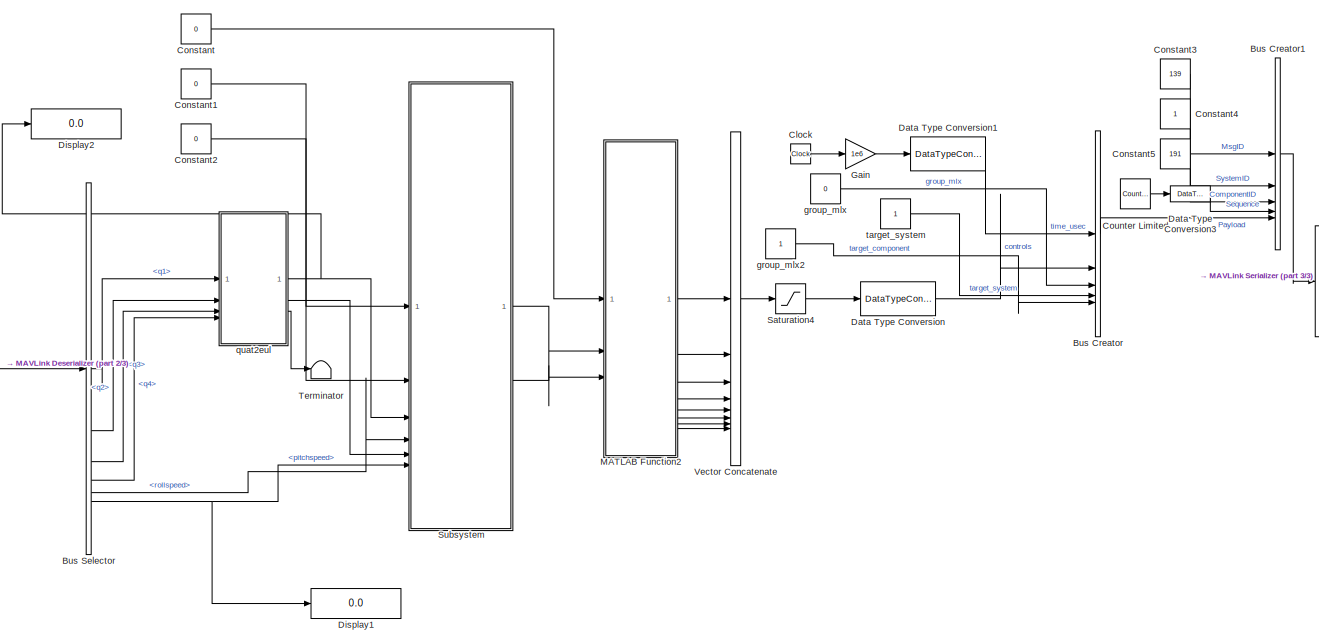
[diagram: root canvas - part 1/3, center side, full height]
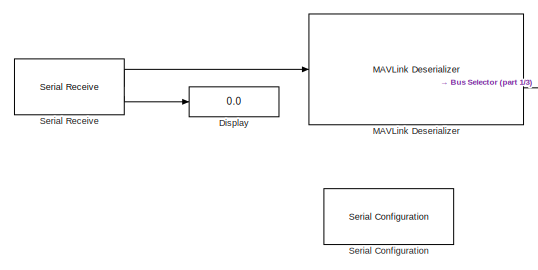
[diagram: root canvas - part 2/3, middle left region]
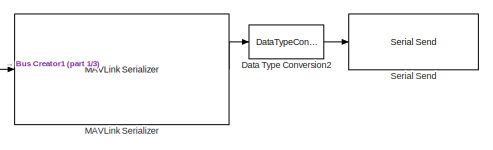
[diagram: root canvas - part 3/3, middle right region]
MODEL slx_46066a2f3b35
KIND model
CONFIG AbsTol = auto
CONFIG EnableMultiTasking = off
CONFIG FixedStep = 0.001
CONFIG MaxStep = auto
CONFIG MinStep = auto
CONFIG RelTol = 1e-3
CONFIG SampleTimeConstraint = Unconstrained
CONFIG SolverName = FixedStepDiscrete
CONFIG StartTime = 0.0
CONFIG StopTime = inf
BLOCK [BusCreator] Bus Creator
  DisplayOption = bar
  InheritFromInputs = on
  Inputs = 5
  NonVirtualBus = on
  OutDataTypeStr = Bus: SL_Bus_MAVLink_SET_ACTUATOR_CONTROL_TARGET_Payload
BLOCK [BusCreator] Bus Creator1
  DisplayOption = bar
  InheritFromInputs = on
  Inputs = 5
  NonVirtualBus = on
  OutDataTypeStr = Bus: SL_Bus_MAVLink_SET_ACTUATOR_CONTROL_TARGET_Packet
BLOCK [BusSelector] Bus Selector
  OutputSignals = Payload.q1,Payload.q2,Payload.q3,Payload.q4,Payload.rollspeed,Payload.pitchspeed
BLOCK [Clock] Clock
BLOCK [Constant] Constant
  Value = 0
BLOCK [Constant] Constant1
  Value = 0
BLOCK [Constant] Constant2
  Value = 0
BLOCK [Constant] Constant3
  OutDataTypeStr = uint32
  Value = 139
BLOCK [Constant] Constant4
  OutDataTypeStr = uint8
BLOCK [Constant] Constant5
  OutDataTypeStr = uint8
  Value = 191
BLOCK [Reference] Counter Limited  REF=simulink/Sources/Counter
Limited
  SourceBlock = simulink/Sources/Counter\nLimited
  SourceType = Counter Limited
BLOCK [DataTypeConversion] Data Type Conversion
  OutDataTypeStr = single
  RndMeth = Floor
  SaturateOnIntegerOverflow = off
BLOCK [DataTypeConversion] Data Type Conversion1
  OutDataTypeStr = uint64
  RndMeth = Floor
  SaturateOnIntegerOverflow = off
BLOCK [DataTypeConversion] Data Type Conversion2
  OutDataTypeStr = uint8
  RndMeth = Floor
  SaturateOnIntegerOverflow = off
BLOCK [DataTypeConversion] Data Type Conversion3
  OutDataTypeStr = uint8
  RndMeth = Floor
  SaturateOnIntegerOverflow = off
BLOCK [Display] Display
  Decimation = 1
BLOCK [Display] Display1
  Decimation = 1
BLOCK [Display] Display2
  Decimation = 1
BLOCK [Gain] Gain
  Gain = 1e6
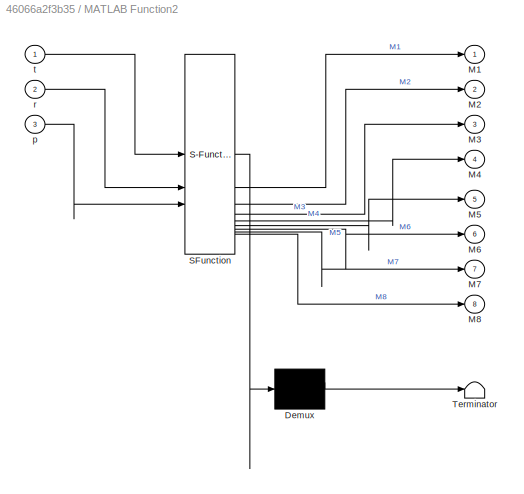
BLOCK [SubSystem] MATLAB Function2
  ErrorFcn = Stateflow.Translate.translate
  PermitHierarchicalResolution = ExplicitOnly
  SFBlockType = MATLAB Function
  TreatAsAtomicUnit = on
BLOCK [Demux] MATLAB Function2/ Demux 
  Outputs = 1
BLOCK [S-Function] MATLAB Function2/ SFunction 
  EnableBusSupport = off
  FunctionName = sf_sfun
  PortCounts = [3 9]
  SFcnIsStateOwnerBlock = off
  SFunctionDeploymentMode = off
  Tag = Stateflow S-Function 3
BLOCK [Terminator] MATLAB Function2/ Terminator 
BLOCK [Outport] MATLAB Function2/M1
BLOCK [Outport] MATLAB Function2/M2
  Port = 2
BLOCK [Outport] MATLAB Function2/M3
  Port = 3
BLOCK [Outport] MATLAB Function2/M4
  Port = 4
BLOCK [Outport] MATLAB Function2/M5
  Port = 5
BLOCK [Outport] MATLAB Function2/M6
  Port = 6
BLOCK [Outport] MATLAB Function2/M7
  Port = 7
BLOCK [Outport] MATLAB Function2/M8
  Port = 8
BLOCK [Inport] MATLAB Function2/p
  Port = 3
BLOCK [Inport] MATLAB Function2/r
  Port = 2
BLOCK [Inport] MATLAB Function2/t
BLOCK [Reference] MAVLink Deserializer  REF=uavmavlinklib/MAVLink Deserializer
  SourceBlock = uavmavlinklib/MAVLink Deserializer
  SourceType = MAVLink Deserializer
BLOCK [Reference] MAVLink Serializer  REF=uavmavlinklib/MAVLink Serializer
  SourceBlock = uavmavlinklib/MAVLink Serializer
  SourceType = MAVLink Serializer
BLOCK [Saturate] Saturation4
  LowerLimit = 0
  UpperLimit = 1
BLOCK [Reference] Serial Configuration  REF=instrumentseriallib/Serial Configuration
  LibrarySourceBlock = instrumentlib/Serial Configuration
  Priority = -200000
  SourceBlock = instrumentseriallib/Serial Configuration
  SourceType = system.SerialConfiguration
BLOCK [Reference] Serial Receive  REF=instrumentseriallib/Serial Receive
  LibrarySourceBlock = embeddedtargetslib/Host Communication/Serial Receive
  Priority = 1
  SourceBlock = instrumentseriallib/Serial Receive
  SourceType = system.SerialReceive
BLOCK [Reference] Serial Send  REF=instrumentseriallib/Serial Send
  LibrarySourceBlock = instrumentlib/Serial Send
  Priority = 1
  SourceBlock = instrumentseriallib/Serial Send
  SourceType = system.SerialSend
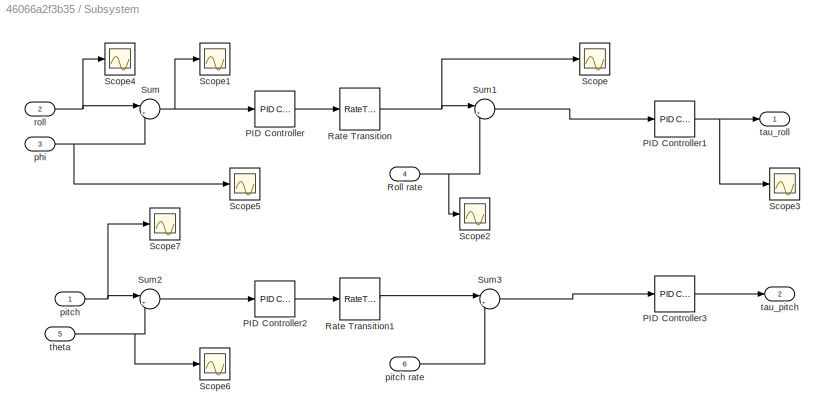
BLOCK [SubSystem] Subsystem
BLOCK [Reference] Subsystem/PID Controller  REF=slpidlib/PID Controller
  LibrarySourceBlock = simulink/Continuous/PID Controller
  SourceBlock = slpidlib/PID Controller
  SourceType = PID 1dof
BLOCK [Reference] Subsystem/PID Controller1  REF=slpidlib/PID Controller
  LibrarySourceBlock = simulink/Continuous/PID Controller
  SourceBlock = slpidlib/PID Controller
  SourceType = PID 1dof
BLOCK [Reference] Subsystem/PID Controller2  REF=slpidlib/PID Controller
  LibrarySourceBlock = simulink/Continuous/PID Controller
  SourceBlock = slpidlib/PID Controller
  SourceType = PID 1dof
BLOCK [Reference] Subsystem/PID Controller3  REF=slpidlib/PID Controller
  LibrarySourceBlock = simulink/Continuous/PID Controller
  SourceBlock = slpidlib/PID Controller
  SourceType = PID 1dof
BLOCK [RateTransition] Subsystem/Rate Transition
  OutPortSampleTime = 0.001
BLOCK [RateTransition] Subsystem/Rate Transition1
  OutPortSampleTime = 0.001
BLOCK [Inport] Subsystem/Roll rate
  Port = 4
BLOCK [Scope] Subsystem/Scope
  ActiveDisplayYMaximum = 0.062193159013986588
  ActiveDisplayYMinimum = -0.066639374941587448
  DataLogging = on
  DataLoggingSaveFormat = Structure With Time
  DataLoggingVariableName = des_rollrate
  Floating = off
  GraphicalSettings = {"Style":{"BackgroundColor":[0.12941176470588237,0.12941176470588237,0.12941176470588237],"AxesColor":[0.07058823529411765,0.07058823529411765,0.07058823529411765],"LabelsColor":[0.8509803921568627,0.8509803921568627,0.8509803921568627],"PreserveColors":false,"Visible":[true],"LineStyle":["-"],"LineWidth":[1.5],"BarWidth":[0.9],"LineColor":["auto"],"LineFaceAlpha":[1],"LineEdgeAlpha":[1],"Marker":...<+1895ch>
  MultipleDisplayCache = [{"MaxYLimMag":0.066639374941587448,"MaxYLimReal":0.062193159013986588,"MinYLimMag":0,"MinYLimReal":-0.066639374941587448,"PlotAsMagnitudePhase":false,"ShowGrid":true,"ShowLegend":false,"Title":"%<SignalLabel>","YLabel":""}]
  NumInputPorts = 1
  ScopeFrameLocation = window
  WasSavedAsWebScope = on
  WindowPosition = [261.000000,235.000000,560.000000,420.000000,]
BLOCK [Scope] Subsystem/Scope1
  ActiveDisplayYMaximum = 0.65147780627012253
  ActiveDisplayYMinimum = -0.65983980149030685
  DataLogging = on
  DataLoggingSaveFormat = Structure With Time
  DataLoggingVariableName = error1
  Floating = off
  GraphicalSettings = {"Style":{"BackgroundColor":[0.12941176470588237,0.12941176470588237,0.12941176470588237],"AxesColor":[0.07058823529411765,0.07058823529411765,0.07058823529411765],"LabelsColor":[0.8509803921568627,0.8509803921568627,0.8509803921568627],"PreserveColors":false,"Visible":[true],"LineStyle":["-"],"LineWidth":[1.5],"BarWidth":[0.9],"LineColor":["auto"],"LineFaceAlpha":[1],"LineEdgeAlpha":[1],"Marker":...<+1991ch>
  MultipleDisplayCache = [{"MaxYLimMag":0.65983980149030685,"MaxYLimReal":0.65147780627012253,"MinYLimMag":0,"MinYLimReal":-0.65983980149030685,"PlotAsMagnitudePhase":false,"ShowGrid":true,"ShowLegend":false,"Title":"%<SignalLabel>","YLabel":""}]
  NumInputPorts = 1
  ScopeFrameLocation = window
  WasSavedAsWebScope = on
  WindowPosition = [661.000000,230.000000,560.000000,420.000000,]
BLOCK [Scope] Subsystem/Scope2
  ActiveDisplayYMaximum = 1.3986920863389969
  ActiveDisplayYMinimum = -1.3887496739625931
  DataLogging = on
  DataLoggingSaveFormat = Structure With Time
  DataLoggingVariableName = rollrate
  Floating = off
  GraphicalSettings = {"AxesScalingProperties":{"AlignXAxis":"Center","AlignYAxis":"Center","AutoScaleXAxisLimits":false,"AxesScaling":"Manual","AxesScalingNumUpdates":10,"ExpandOnly":true,"ScaleAxesLimitsAtStop":false,"XAxisDataRange":100,"YAxisDataRange":80},"DisplayProperties":{"ColorOrder":["auto","auto","auto","auto","auto","auto","auto","auto","auto","auto","auto","auto","auto","auto","auto","auto","auto","auto",...<+2022ch>
  MultipleDisplayCache = [{"MaxYLimMag":1.3986920863389969,"MaxYLimReal":1.3986920863389969,"MinYLimMag":0,"MinYLimReal":-1.3887496739625931,"PlotAsMagnitudePhase":false,"ShowGrid":true,"ShowLegend":false,"Title":"%<SignalLabel>","YLabel":""}]
  NumInputPorts = 1
  ScopeFrameLocation = window
  WasSavedAsWebScope = on
  WindowPosition = [1149.000000,287.000000,560.000000,433.000000,]
BLOCK [Scope] Subsystem/Scope3
  ActiveDisplayYMaximum = 0.13515391017383055
  ActiveDisplayYMinimum = -0.13114039766727936
  DataLogging = on
  DataLoggingSaveFormat = Structure With Time
  DataLoggingVariableName = tau_roll
  Floating = off
  GraphicalSettings = {"AxesScalingProperties":{"AlignXAxis":"Center","AlignYAxis":"Center","AutoScaleXAxisLimits":false,"AxesScaling":"Manual","AxesScalingNumUpdates":10,"ExpandOnly":true,"ScaleAxesLimitsAtStop":false,"XAxisDataRange":100,"YAxisDataRange":80},"DisplayProperties":{"ColorOrder":["auto","auto","auto","auto","auto","auto","auto","auto","auto","auto","auto","auto","auto","auto","auto","auto","auto","auto",...<+1938ch>
  MultipleDisplayCache = [{"MaxYLimMag":1.25,"MaxYLimReal":0.13515391017383055,"MinYLimMag":0,"MinYLimReal":-0.13114039766727936,"PlotAsMagnitudePhase":false,"ShowGrid":true,"ShowLegend":false,"Title":"%<SignalLabel>","YLabel":""}]
  NumInputPorts = 1
  ScopeFrameLocation = window
  WasSavedAsWebScope = on
  WindowPosition = [488.000000,222.000000,560.000000,420.000000,]
BLOCK [Scope] Subsystem/Scope4
  ActiveDisplayYMaximum = 0.10656582657247782
  ActiveDisplayYMinimum = -0.10880342219024897
  DataLogging = on
  DataLoggingSaveFormat = Structure With Time
  DataLoggingVariableName = des_roll
  Floating = off
  GraphicalSettings = {"AxesScalingProperties":{"AlignXAxis":"Center","AlignYAxis":"Center","AutoScaleXAxisLimits":false,"AxesScaling":"Manual","AxesScalingNumUpdates":10,"ExpandOnly":true,"ScaleAxesLimitsAtStop":false,"XAxisDataRange":100,"YAxisDataRange":80},"DisplayProperties":{"ColorOrder":["auto","auto","auto","auto","auto","auto","auto","auto","auto","auto","auto","auto","auto","auto","auto","auto","auto","auto",...<+2006ch>
  MultipleDisplayCache = [{"MaxYLimMag":0.10880342219024897,"MaxYLimReal":0.10656582657247782,"MinYLimMag":0,"MinYLimReal":-0.10880342219024897,"PlotAsMagnitudePhase":false,"ShowGrid":true,"ShowLegend":false,"Title":"%<SignalLabel>","YLabel":""}]
  NumInputPorts = 1
  ScopeFrameLocation = window
  WasSavedAsWebScope = on
  WindowPosition = [586.000000,191.000000,560.000000,420.000000,]
BLOCK [Scope] Subsystem/Scope5
  ActiveDisplayYMaximum = 0.58284265660383228
  ActiveDisplayYMinimum = -0.57664480562044174
  DataLogging = on
  DataLoggingSaveFormat = Structure With Time
  DataLoggingVariableName = quatroll
  Floating = off
  GraphicalSettings = {"AxesScalingProperties":{"AlignXAxis":"Center","AlignYAxis":"Center","AutoScaleXAxisLimits":false,"AxesScaling":"Manual","AxesScalingNumUpdates":10,"ExpandOnly":true,"ScaleAxesLimitsAtStop":false,"XAxisDataRange":100,"YAxisDataRange":80},"DisplayProperties":{"ColorOrder":["auto","auto","auto","auto","auto","auto","auto","auto","auto","auto","auto","auto","auto","auto","auto","auto","auto","auto",...<+2004ch>
  MultipleDisplayCache = [{"MaxYLimMag":0.58284265660383228,"MaxYLimReal":0.58284265660383228,"MinYLimMag":0,"MinYLimReal":-0.57664480562044174,"PlotAsMagnitudePhase":false,"ShowGrid":true,"ShowLegend":false,"Title":"%<SignalLabel>","YLabel":""}]
  NumInputPorts = 1
  ScopeFrameLocation = window
  WasSavedAsWebScope = on
  WindowPosition = [93.000000,235.000000,560.000000,402.000000,]
BLOCK [Scope] Subsystem/Scope6
  ActiveDisplayYMaximum = 0.78107425943017006
  ActiveDisplayYMinimum = -0.31608188524842262
  ContainerLayout = {"WindowBounds":[307,28,1296,807]}
  DataLogging = on
  DataLoggingSaveFormat = Structure With Time
  DataLoggingVariableName = quatpitch
  Floating = off
  GraphicalSettings = {"Style":{"BackgroundColor":[0.12941176470588237,0.12941176470588237,0.12941176470588237],"AxesColor":[0.07058823529411765,0.07058823529411765,0.07058823529411765],"LabelsColor":[0.8509803921568627,0.8509803921568627,0.8509803921568627],"PreserveColors":false,"Visible":[true],"LineStyle":["-"],"LineWidth":[1.5],"BarWidth":[0.9],"LineColor":["auto"],"LineFaceAlpha":[1],"LineEdgeAlpha":[1],"Marker":...<+1995ch>
  MultipleDisplayCache = [{"MaxYLimMag":0.78107425943017006,"MaxYLimReal":0.78107425943017006,"MinYLimMag":0,"MinYLimReal":-0.31608188524842262,"PlotAsMagnitudePhase":false,"ShowGrid":true,"ShowLegend":false,"Title":"%<SignalLabel>","YLabel":""}]
  NumInputPorts = 1
  ScopeFrameLocation = container
  WasSavedAsWebScope = on
  WindowPosition = [307.000000,245.000000,1296.000000,807.000000,]
BLOCK [Scope] Subsystem/Scope7
  ActiveDisplayYMaximum = 1.2156594097614288
  ActiveDisplayYMinimum = -1.246184378862381
  DataLogging = on
  DataLoggingSaveFormat = Structure With Time
  DataLoggingVariableName = des_pitch
  Floating = off
  GraphicalSettings = {"Style":{"BackgroundColor":[0.12941176470588237,0.12941176470588237,0.12941176470588237],"AxesColor":[0.07058823529411765,0.07058823529411765,0.07058823529411765],"LabelsColor":[0.8509803921568627,0.8509803921568627,0.8509803921568627],"PreserveColors":false,"Visible":[true],"LineStyle":["-"],"LineWidth":[1.5],"BarWidth":[0.9],"LineColor":["auto"],"LineFaceAlpha":[1],"LineEdgeAlpha":[1],"Marker":...<+1898ch>
  MultipleDisplayCache = [{"MaxYLimMag":1.246184378862381,"MaxYLimReal":1.2156594097614288,"MinYLimMag":0,"MinYLimReal":-1.246184378862381,"PlotAsMagnitudePhase":false,"ShowGrid":true,"ShowLegend":false,"Title":"%<SignalLabel>","YLabel":""}]
  NumInputPorts = 1
  ScopeFrameLocation = window
  WasSavedAsWebScope = on
  WindowPosition = [463.000000,127.000000,560.000000,420.000000,]
BLOCK [Sum] Subsystem/Sum
  Inputs = |+-
BLOCK [Sum] Subsystem/Sum1
  Inputs = |+-
BLOCK [Sum] Subsystem/Sum2
  Inputs = |+-
BLOCK [Sum] Subsystem/Sum3
  Inputs = |+-
BLOCK [Inport] Subsystem/phi
  Port = 3
BLOCK [Inport] Subsystem/pitch
BLOCK [Inport] Subsystem/pitch rate
  Port = 6
BLOCK [Inport] Subsystem/roll
  Port = 2
BLOCK [Outport] Subsystem/tau_pitch
  Port = 2
BLOCK [Outport] Subsystem/tau_roll
BLOCK [Inport] Subsystem/theta
  Port = 5
BLOCK [Terminator] Terminator
BLOCK [Concatenate] Vector Concatenate
  NumInputs = 8
BLOCK [Constant] group_mlx
  OutDataTypeStr = uint8
  Value = 0
BLOCK [Constant] group_mlx2
  OutDataTypeStr = uint8
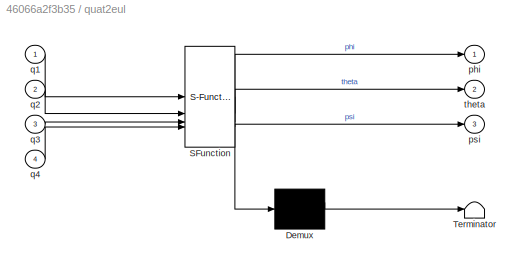
BLOCK [SubSystem] quat2eul
  ErrorFcn = Stateflow.Translate.translate
  PermitHierarchicalResolution = ExplicitOnly
  SFBlockType = MATLAB Function
  TreatAsAtomicUnit = on
BLOCK [Demux] quat2eul/ Demux 
  Outputs = 1
BLOCK [S-Function] quat2eul/ SFunction 
  EnableBusSupport = off
  FunctionName = sf_sfun
  PortCounts = [4 4]
  SFcnIsStateOwnerBlock = off
  SFunctionDeploymentMode = off
  Tag = Stateflow S-Function 10
BLOCK [Terminator] quat2eul/ Terminator 
BLOCK [Outport] quat2eul/phi
  VectorParamsAs1DForOutWhenUnconnected = off
BLOCK [Outport] quat2eul/psi
  Port = 3
  VectorParamsAs1DForOutWhenUnconnected = off
BLOCK [Inport] quat2eul/q1
BLOCK [Inport] quat2eul/q2
  Port = 2
BLOCK [Inport] quat2eul/q3
  Port = 3
BLOCK [Inport] quat2eul/q4
  Port = 4
BLOCK [Outport] quat2eul/theta
  Port = 2
  VectorParamsAs1DForOutWhenUnconnected = off
BLOCK [Constant] target_system
  OutDataTypeStr = uint8
LINE Bus Creator1:1 -> MAVLink Serializer:1
LINE Bus Creator:1 -> Bus Creator1:5
LINE Bus Selector:1 -> quat2eul:1
LINE Bus Selector:2 -> quat2eul:2
LINE Bus Selector:3 -> quat2eul:3
LINE Bus Selector:4 -> quat2eul:4
LINE Bus Selector:5 -> Subsystem:4
NET Bus Selector:6 -> Display1:1, Subsystem:6
LINE Clock:1 -> Gain:1
LINE Constant1:1 -> Subsystem:1
LINE Constant2:1 -> Subsystem:2
LINE Constant3:1 -> Bus Creator1:1
LINE Constant4:1 -> Bus Creator1:2
LINE Constant5:1 -> Bus Creator1:3
LINE Constant:1 -> MATLAB Function2:1
LINE Counter Limited:1 -> Data Type Conversion3:1
LINE Data Type Conversion1:1 -> Bus Creator:1
LINE Data Type Conversion2:1 -> Serial Send:1
LINE Data Type Conversion3:1 -> Bus Creator1:4
LINE Data Type Conversion:1 -> Bus Creator:2
LINE Gain:1 -> Data Type Conversion1:1
LINE MATLAB Function2:1 -> Vector Concatenate:1
LINE MATLAB Function2:2 -> Vector Concatenate:2
LINE MATLAB Function2:3 -> Vector Concatenate:3
LINE MATLAB Function2:4 -> Vector Concatenate:4
LINE MATLAB Function2:5 -> Vector Concatenate:5
LINE MATLAB Function2:6 -> Vector Concatenate:6
LINE MATLAB Function2:7 -> Vector Concatenate:7
LINE MATLAB Function2:8 -> Vector Concatenate:8
LINE MAVLink Deserializer:2 -> Bus Selector:1
LINE MAVLink Serializer:1 -> Data Type Conversion2:1
LINE Saturation4:1 -> Data Type Conversion:1
LINE Serial Receive:1 -> MAVLink Deserializer:1
LINE Serial Receive:2 -> Display:1
NET Subsystem/PID Controller1:1 -> Subsystem/Scope3:1, Subsystem/tau_roll:1
LINE Subsystem/PID Controller2:1 -> Subsystem/Rate Transition1:1
LINE Subsystem/PID Controller3:1 -> Subsystem/tau_pitch:1
LINE Subsystem/PID Controller:1 -> Subsystem/Rate Transition:1
LINE Subsystem/Rate Transition1:1 -> Subsystem/Sum3:1
NET Subsystem/Rate Transition:1 -> Subsystem/Scope:1, Subsystem/Sum1:1
NET Subsystem/Roll rate:1 -> Subsystem/Scope2:1, Subsystem/Sum1:2
LINE Subsystem/Sum1:1 -> Subsystem/PID Controller1:1
LINE Subsystem/Sum2:1 -> Subsystem/PID Controller2:1
LINE Subsystem/Sum3:1 -> Subsystem/PID Controller3:1
NET Subsystem/Sum:1 -> Subsystem/PID Controller:1, Subsystem/Scope1:1
NET Subsystem/phi:1 -> Subsystem/Scope5:1, Subsystem/Sum:2
LINE Subsystem/pitch rate:1 -> Subsystem/Sum3:2
NET Subsystem/pitch:1 -> Subsystem/Scope7:1, Subsystem/Sum2:1
NET Subsystem/roll:1 -> Subsystem/Scope4:1, Subsystem/Sum:1
NET Subsystem/theta:1 -> Subsystem/Scope6:1, Subsystem/Sum2:2
LINE Subsystem:1 -> MATLAB Function2:2
LINE Subsystem:2 -> MATLAB Function2:3
LINE Vector Concatenate:1 -> Saturation4:1
LINE group_mlx2:1 -> Bus Creator:5
LINE group_mlx:1 -> Bus Creator:3
NET quat2eul:1 -> Display2:1, Subsystem:3
LINE quat2eul:2 -> Subsystem:5
LINE quat2eul:3 -> Terminator:1
LINE target_system:1 -> Bus Creator:4
note: NET lines group one-source signal fan-out (src -> all destinations, sorted); 1:1 wires keep LINE
CHART MATLAB Function2 states=1 transitions=1
  STATE_LABEL 'eML_blk_kernel()'
  STATE_LABEL 'SCRIPT:\nfunction [M1,M2,M3,M4,M5,M6,M7,M8]  = fcn(t,r, p)\nM1 = t - 0.707107*r + 0.707107*p;\nM2 = t + 0.707107*r - 0.707107*p;\nM3 = t + 0.707107*r + 0.707107*p;\nM4 = t - 0.707107*r - 0.707107*p;\nM5 = 0;\nM6 = 0;\nM7 = 0;\nM8 = 0;'
CHART quat2eul states=1 transitions=1
  STATE_LABEL 'eML_blk_kernel()'
  STATE_LABEL 'SCRIPT:\nfunction [phi,theta,psi] = quat2eul(q1,q2,q3,q4)\n\n% Quaternion conversion to Euler angles based on the PX4 Firmware v1.10.2\n% release.\n\nphi = atan2(2*(q1*q2 + q3* q4), q1^2 - q2^2 - q3^2 + q4^2);\ntheta = asin(-2*(q2*q4 - q1*q3));\npsi = atan2(2*(q2*q3 + q1* q4), q1^2 + q2^2 - q3^2 - q4^2);\nend'
CHART  states=0 transitions=0
CHART  states=0 transitions=0
